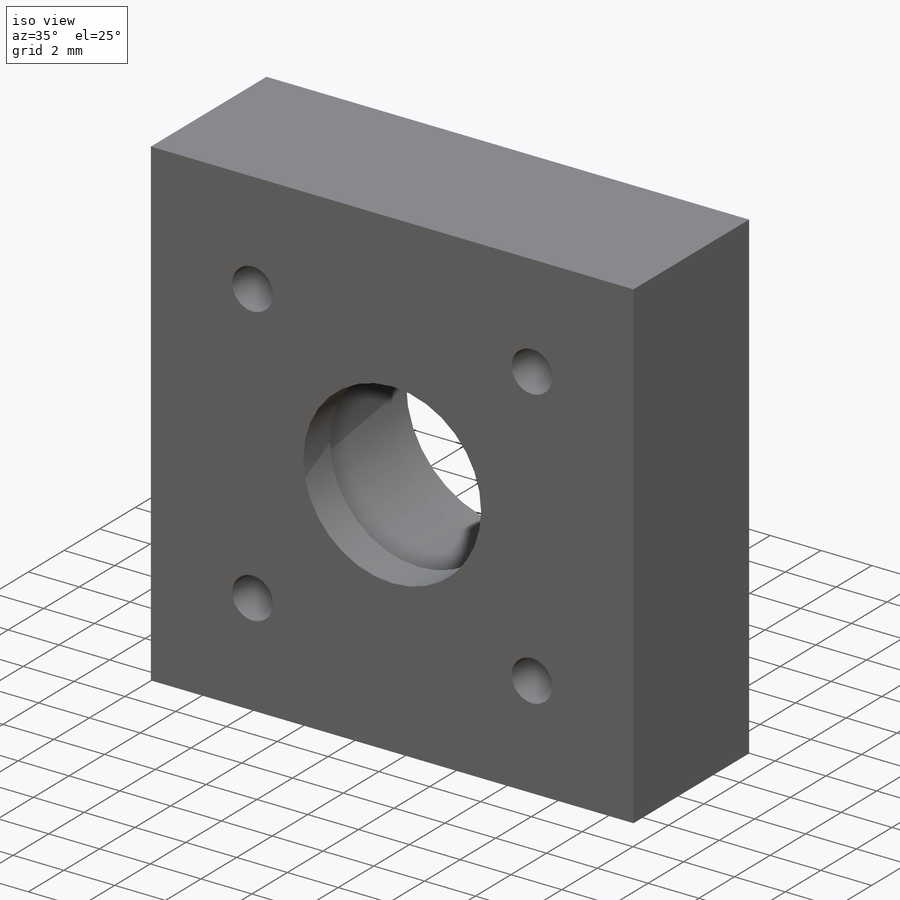
[diagram: iso view]
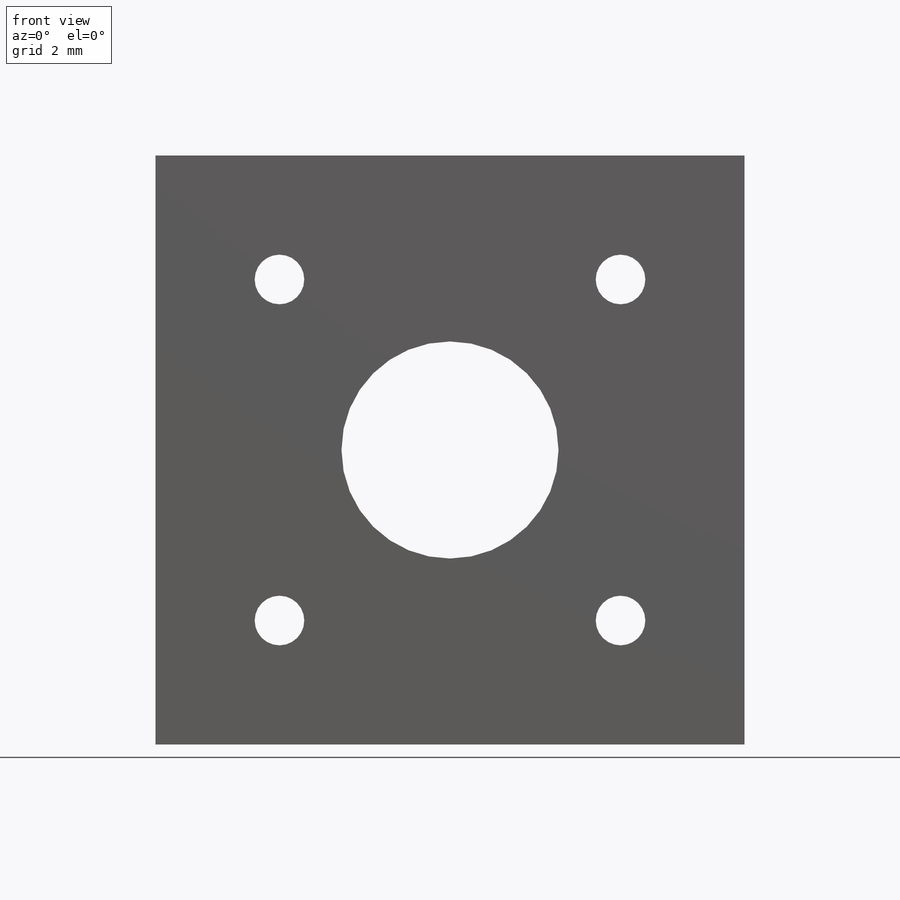
[diagram: front view]
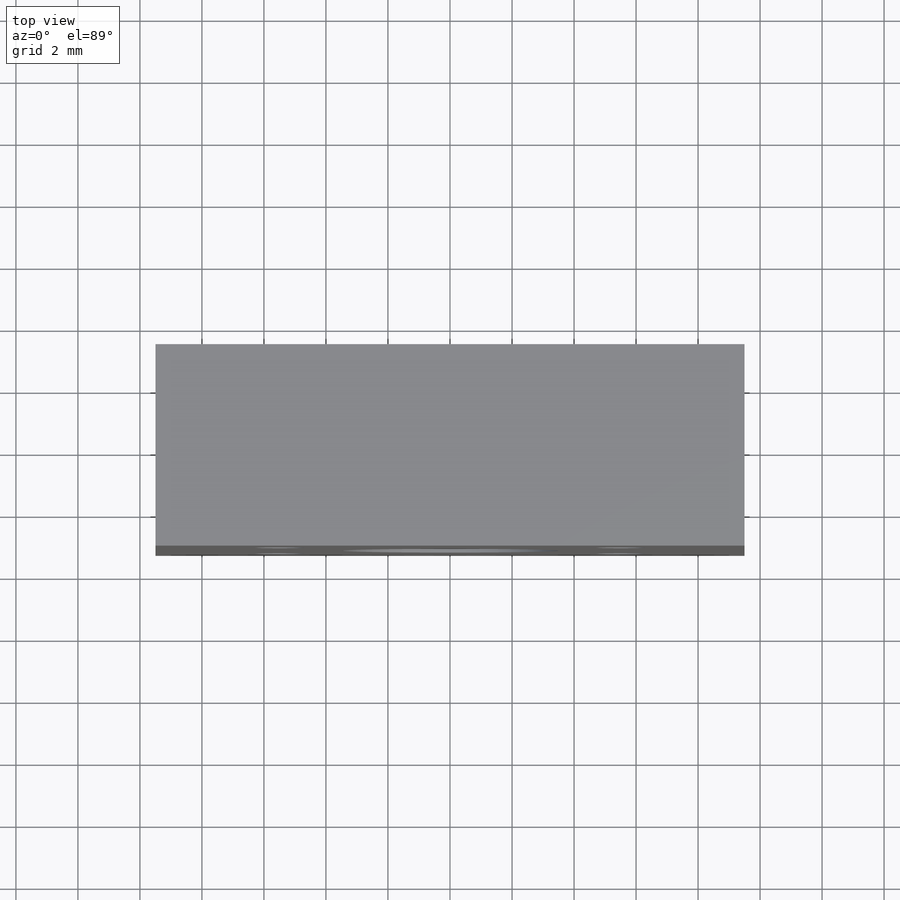
[diagram: top view]
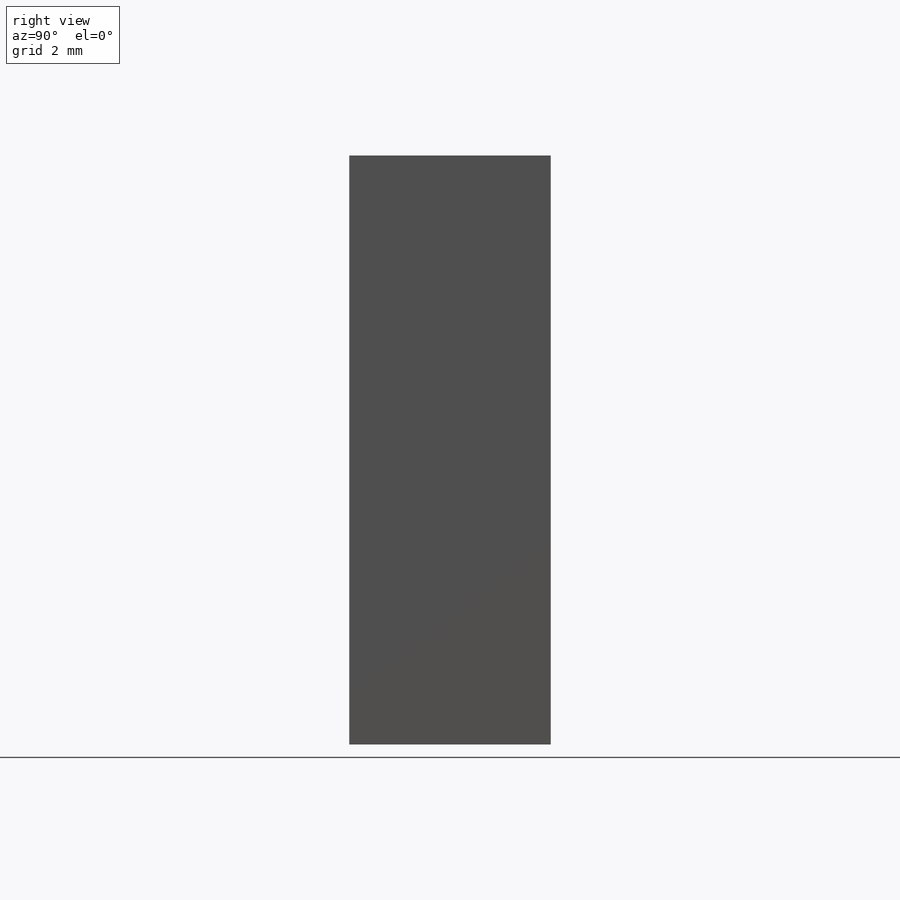
[diagram: right view]
SOLIDWORKS PART (.sldprt)
format: sldprt  version: not decoded by parser v0  size: 223,744 bytes
history: native  units: mm
features: sketch x4, material x1, extrude x1, hole x1, cut_extrude x1 (+12 scaffold rows collapsed)
feature tree (20):
  scaffold x12  (default folders/planes/origin — collapsed)
  material  "POM copolymère d'acétal"
  sketch  "Sketch1"  dims[D2=7.0mm D1=19.0mm D3=31.0mm]
  extrude  "Boss-Extrude1"  Depth=6.5mm
  hole  "Tap Drill for M2 Tap1"  Diameter=1.6mm Depth=11.5mm
  sketch  "Sketch3"  dims[c1.D1=11.0mm c1.D2=25.0mm c2.D1=11.0mm c2.D2=11.0mm]
  sketch  "Sketch2"  dims[hole-wizard template sketch: 47 standard entries collapsed; hole parameters kept: c15.Hole Depth=11.5mm c15.D3=~14.816244mm c15.Drill Angle=180.0deg]
  sketch  "Sketch4"  dims[D1=8.0mm]
  cut_extrude  "Cut-Extrude1"  Depth=5mm
decode coverage: 7 of 7 modeling features carry decoded parameters
note: ~ marks probable driven/reference dimensions
note: suppression state not decoded; provenance and decode notes live in map.json
